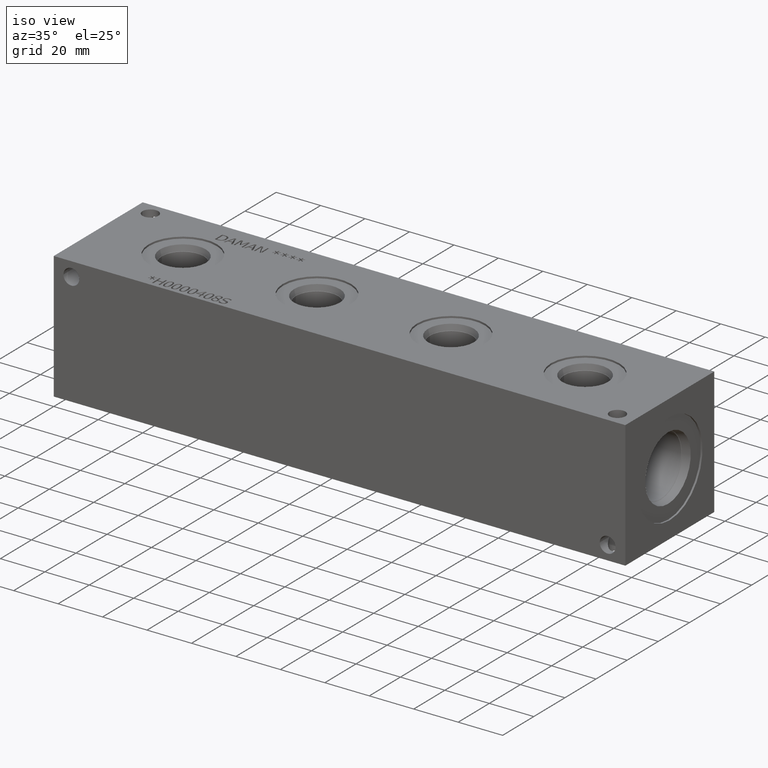
[diagram: clean part render]
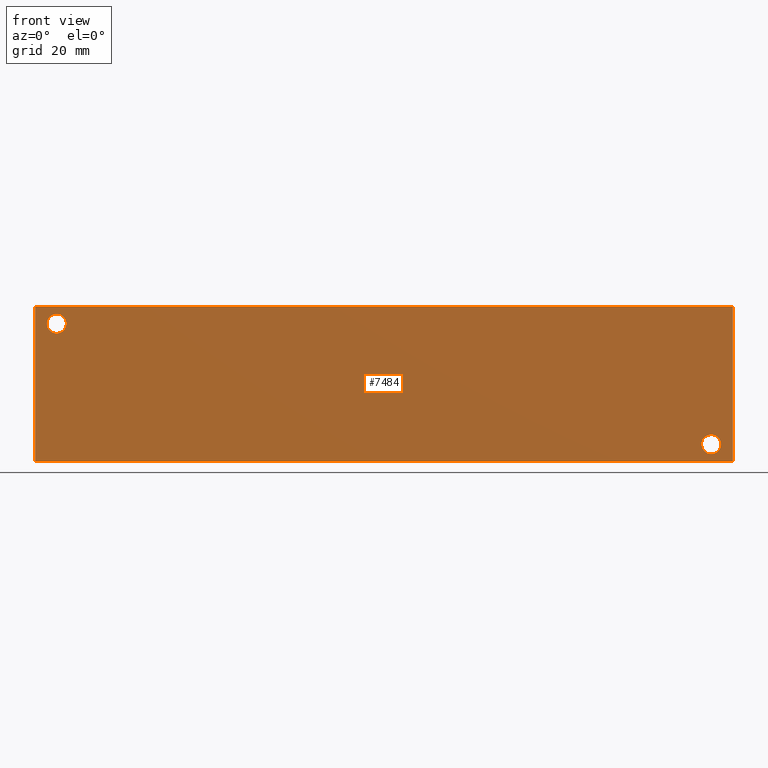
[diagram: tour spotlight — one face highlighted and labeled with its STEP entity id]
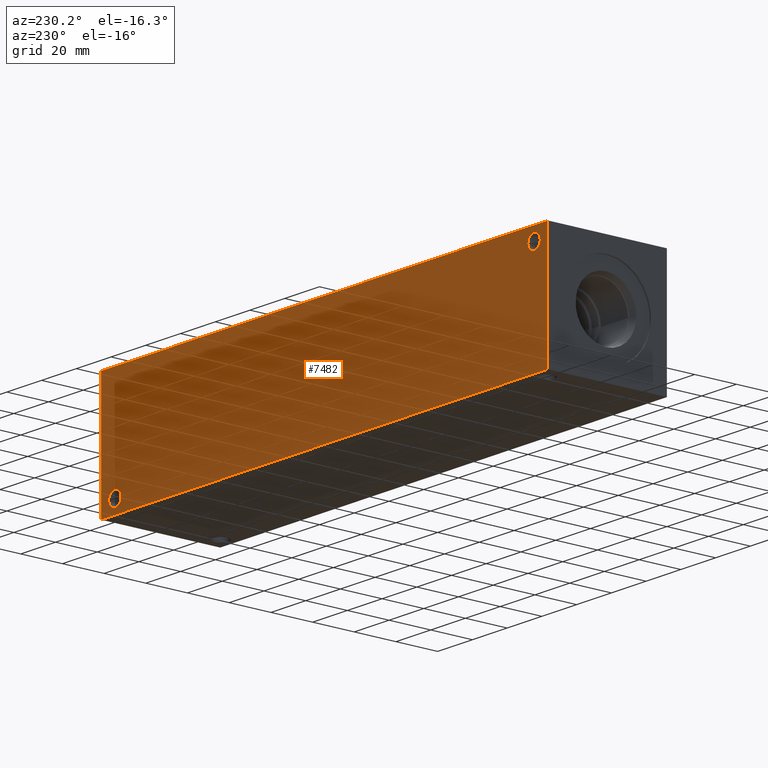
[diagram: tour spotlight — one face highlighted and labeled with its STEP entity id]
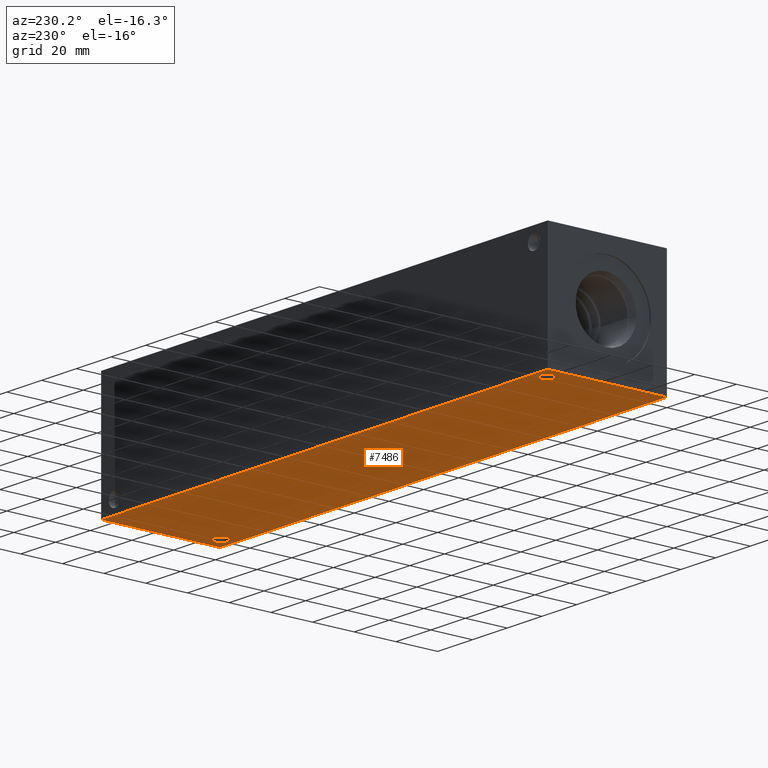
[diagram: tour spotlight — one face highlighted and labeled with its STEP entity id]
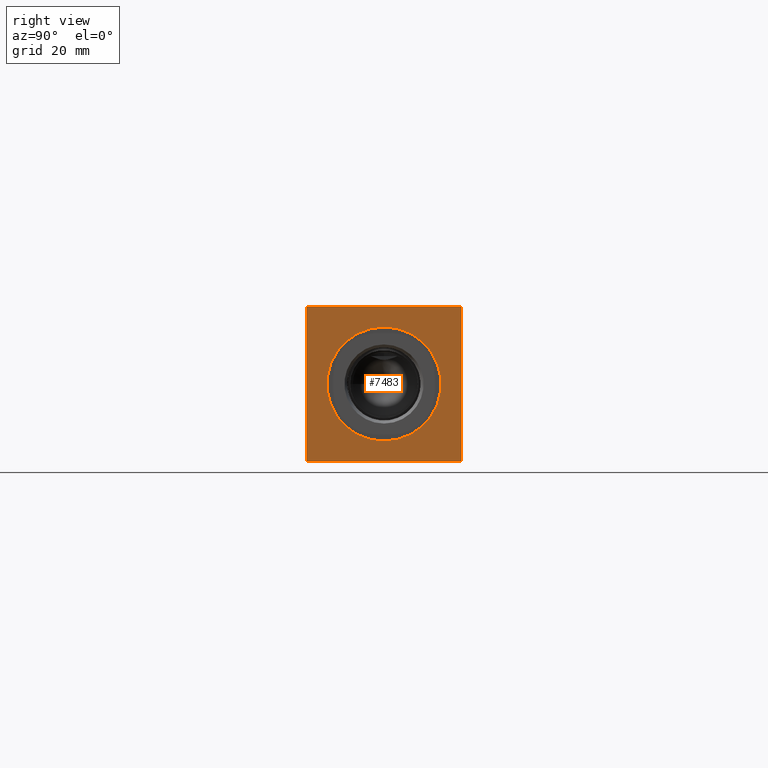
[diagram: tour spotlight — one face highlighted and labeled with its STEP entity id]
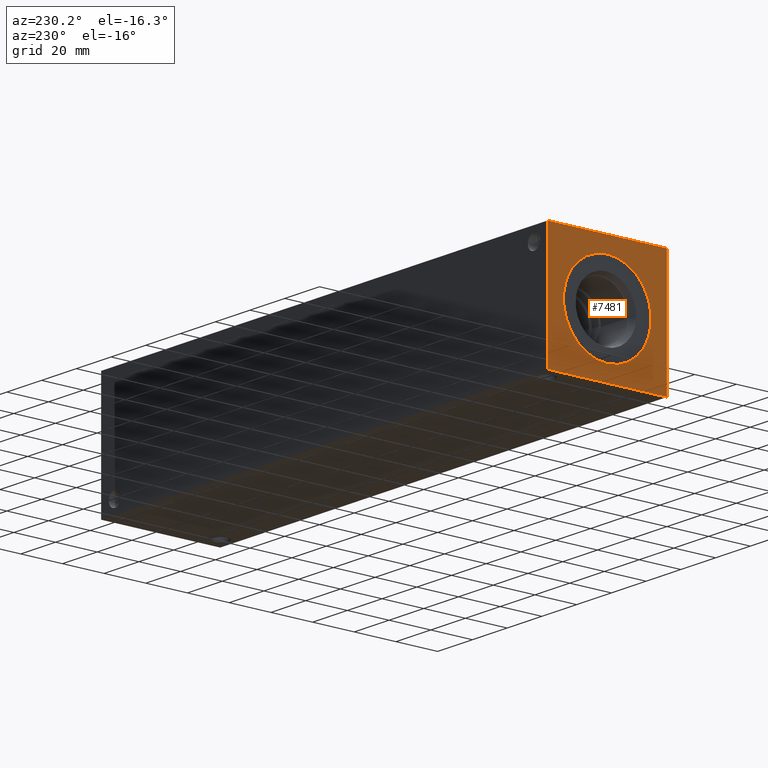
[diagram: tour spotlight — one face highlighted and labeled with its STEP entity id]
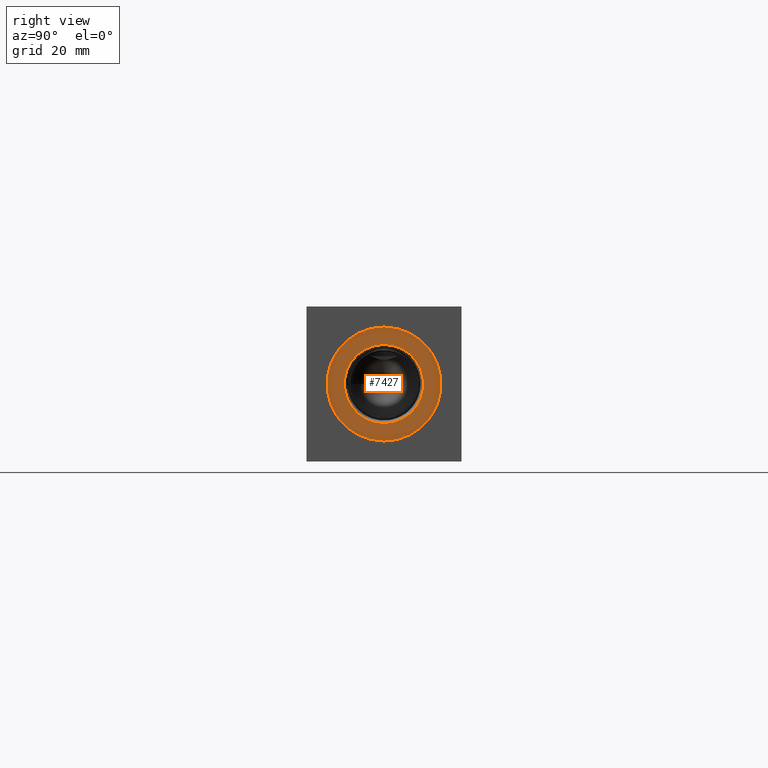
[diagram: tour spotlight — one face highlighted and labeled with its STEP entity id]
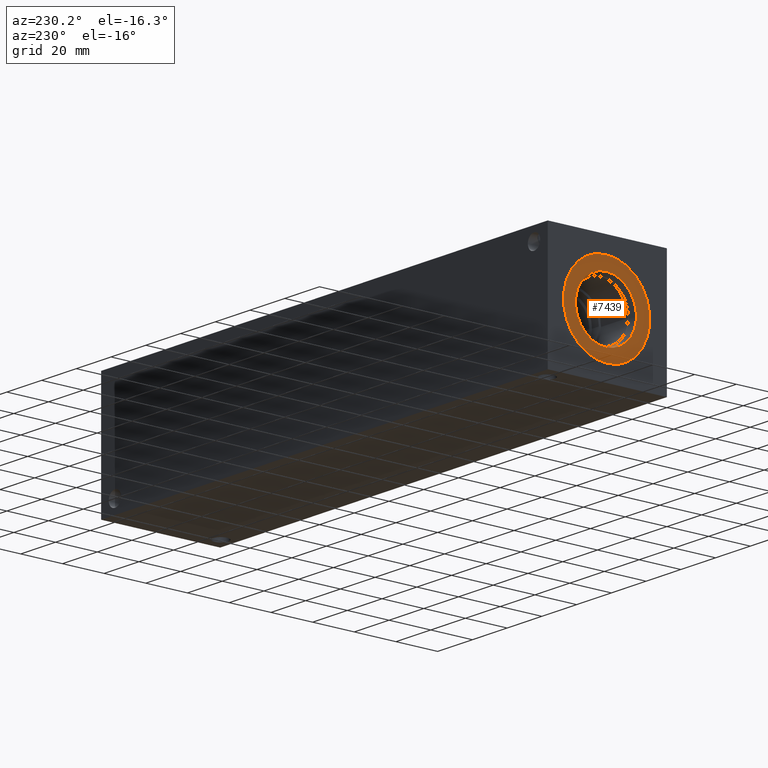
[diagram: tour spotlight — one face highlighted and labeled with its STEP entity id]
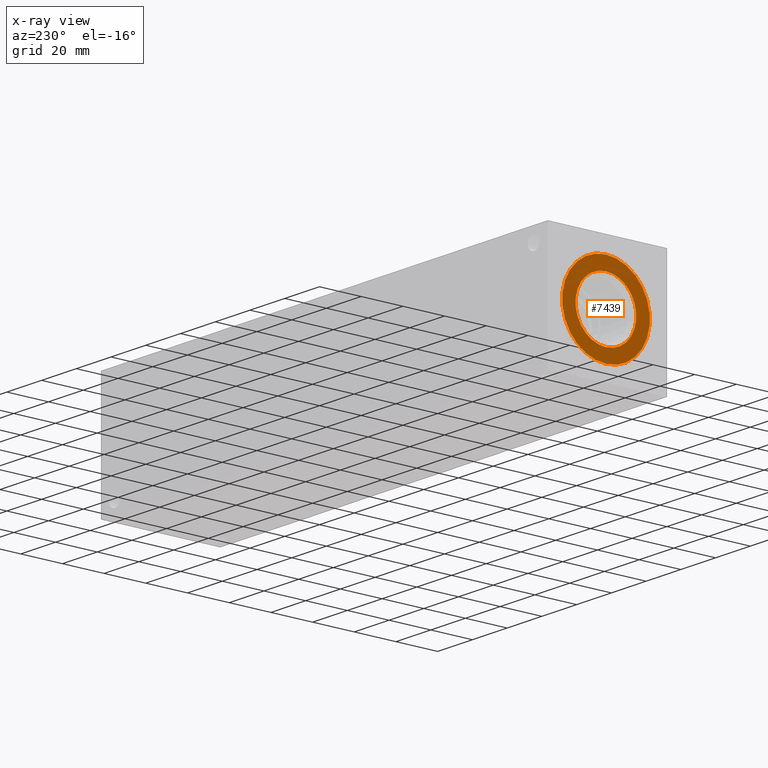
[diagram: x-ray of the same camera — body ghosted, this tour face saturated]
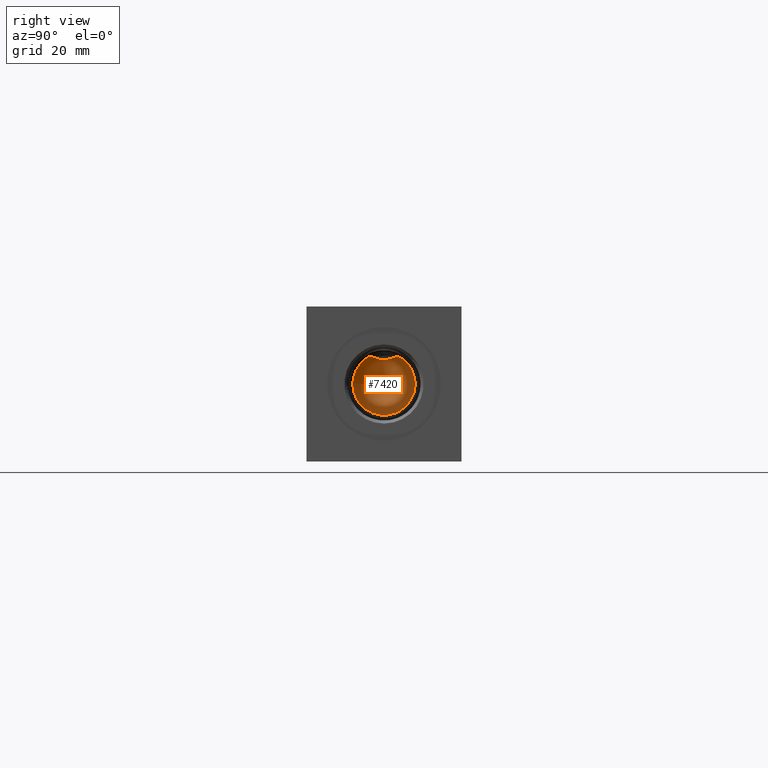
[diagram: tour spotlight — one face highlighted and labeled with its STEP entity id]
A machine part: a face-by-face anatomy tour. The part has 382 B-rep faces; the first image is the clean iso view, then the 8 largest visible faces are spotlighted one at a time (largest first), each with its STEP entity span.

Face 1 — front view, entity #7484. In plain terms, the highlighted planar face has unit normal (0, -1, 0).
Definition (entity closure, byte-faithful):
#92=CIRCLE('',#7717,3.5687);
#93=CIRCLE('',#7718,3.5687);
#95=CIRCLE('',#7727,3.5687);
#96=CIRCLE('',#7728,3.5687);
#253=FACE_BOUND('',#1292,.T.);
#254=FACE_BOUND('',#1293,.T.);
#475=PLANE('',#7906);
#857=FACE_OUTER_BOUND('',#1291,.T.);
#1291=EDGE_LOOP('',(#6689,#6690,#6691,#6692));
#1292=EDGE_LOOP('',(#6693,#6694));
#1293=EDGE_LOOP('',(#6695,#6696));
#1543=LINE('',#11538,#2235);
#1983=LINE('',#12919,#2675);
#1988=LINE('',#12928,#2680);
#1989=LINE('',#12930,#2681);
#2235=VECTOR('',#8278,10.);
#2675=VECTOR('',#9402,10.);
#2680=VECTOR('',#9411,10.);
#2681=VECTOR('',#9414,10.);
#3188=VERTEX_POINT('',#11536);
#3189=VERTEX_POINT('',#11537);
#3466=VERTEX_POINT('',#12478);
#3467=VERTEX_POINT('',#12479);
#3471=VERTEX_POINT('',#12496);
#3472=VERTEX_POINT('',#12497);
#3592=VERTEX_POINT('',#12917);
#3594=VERTEX_POINT('',#12926);
#4030=EDGE_CURVE('',#3188,#3189,#1543,.T.);
#4439=EDGE_CURVE('',#3466,#3467,#92,.T.);
#4440=EDGE_CURVE('',#3467,#3466,#93,.T.);
#4449=EDGE_CURVE('',#3471,#3472,#95,.T.);
#4450=EDGE_CURVE('',#3472,#3471,#96,.T.);
#4625=EDGE_CURVE('',#3592,#3188,#1983,.T.);
#4630=EDGE_CURVE('',#3594,#3189,#1988,.T.);
#4631=EDGE_CURVE('',#3592,#3594,#1989,.T.);
#6689=ORIENTED_EDGE('',*,*,#4631,.T.);
#6690=ORIENTED_EDGE('',*,*,#4630,.T.);
#6691=ORIENTED_EDGE('',*,*,#4030,.F.);
#6692=ORIENTED_EDGE('',*,*,#4625,.F.);
#6693=ORIENTED_EDGE('',*,*,#4439,.T.);
#6694=ORIENTED_EDGE('',*,*,#4440,.T.);
#6695=ORIENTED_EDGE('',*,*,#4449,.T.);
#6696=ORIENTED_EDGE('',*,*,#4450,.T.);
#7484=ADVANCED_FACE('',(#857,#253,#254),#475,.T.);
#7717=AXIS2_PLACEMENT_3D('',#12480,#8969,#8970);
#7718=AXIS2_PLACEMENT_3D('',#12481,#8971,#8972);
#7727=AXIS2_PLACEMENT_3D('',#12498,#8992,#8993);
#7728=AXIS2_PLACEMENT_3D('',#12499,#8994,#8995);
#7906=AXIS2_PLACEMENT_3D('',#12929,#9412,#9413);
#8278=DIRECTION('',(1.,0.,0.));
#8969=DIRECTION('center_axis',(0.,1.,0.));
#8970=DIRECTION('ref_axis',(1.,0.,0.));
#8971=DIRECTION('center_axis',(0.,1.,0.));
#8972=DIRECTION('ref_axis',(1.,0.,0.));
#8992=DIRECTION('center_axis',(0.,1.,0.));
#8993=DIRECTION('ref_axis',(1.,0.,0.));
#8994=DIRECTION('center_axis',(0.,1.,0.));
#8995=DIRECTION('ref_axis',(1.,0.,0.));
#9402=DIRECTION('',(0.,0.,1.));
#9411=DIRECTION('',(0.,0.,1.));
#9412=DIRECTION('center_axis',(0.,-1.,0.));
#9413=DIRECTION('ref_axis',(1.,0.,0.));
#9414=DIRECTION('',(1.,0.,0.));
#11536=CARTESIAN_POINT('',(0.,0.,57.15));
#11537=CARTESIAN_POINT('',(257.175,0.,57.15));
#11538=CARTESIAN_POINT('',(0.,0.,57.15));
#12478=CARTESIAN_POINT('',(252.7935,0.,6.35));
#12479=CARTESIAN_POINT('',(245.6561,0.,6.35));
#12480=CARTESIAN_POINT('Origin',(249.2248,0.,6.35));
#12481=CARTESIAN_POINT('Origin',(249.2248,0.,6.35));
#12496=CARTESIAN_POINT('',(11.4935,0.,50.8));
#12497=CARTESIAN_POINT('',(4.3561,0.,50.8));
#12498=CARTESIAN_POINT('Origin',(7.9248,0.,50.8));
#12499=CARTESIAN_POINT('Origin',(7.9248,0.,50.8));
#12917=CARTESIAN_POINT('',(0.,0.,0.));
#12919=CARTESIAN_POINT('',(0.,0.,0.));
#12926=CARTESIAN_POINT('',(257.175,0.,0.));
#12928=CARTESIAN_POINT('',(257.175,0.,0.));
#12929=CARTESIAN_POINT('Origin',(0.,0.,0.));
#12930=CARTESIAN_POINT('',(0.,0.,0.));

Face 2 — auxiliary view, entity #7482. In plain terms, the highlighted planar face has unit normal (0, 1, 0).
Definition (entity closure, byte-faithful):
#94=CIRCLE('',#7724,3.5687);
#97=CIRCLE('',#7734,3.5687);
#250=FACE_BOUND('',#1287,.T.);
#251=FACE_BOUND('',#1288,.T.);
#473=PLANE('',#7904);
#855=FACE_OUTER_BOUND('',#1286,.T.);
#1286=EDGE_LOOP('',(#6677,#6678,#6679,#6680));
#1287=EDGE_LOOP('',(#6681));
#1288=EDGE_LOOP('',(#6682));
#1545=LINE('',#11542,#2237);
#1984=LINE('',#12920,#2676);
#1985=LINE('',#12923,#2677);
#1986=LINE('',#12924,#2678);
#2237=VECTOR('',#8280,10.);
#2676=VECTOR('',#9403,10.);
#2677=VECTOR('',#9406,10.);
#2678=VECTOR('',#9407,10.);
#3190=VERTEX_POINT('',#11539);
#3191=VERTEX_POINT('',#11541);
#3470=VERTEX_POINT('',#12490);
#3475=VERTEX_POINT('',#12508);
#3591=VERTEX_POINT('',#12916);
#3593=VERTEX_POINT('',#12922);
#4032=EDGE_CURVE('',#3190,#3191,#1545,.T.);
#4447=EDGE_CURVE('',#3470,#3470,#94,.T.);
#4457=EDGE_CURVE('',#3475,#3475,#97,.T.);
#4626=EDGE_CURVE('',#3591,#3191,#1984,.T.);
#4627=EDGE_CURVE('',#3593,#3591,#1985,.T.);
#4628=EDGE_CURVE('',#3593,#3190,#1986,.T.);
#6677=ORIENTED_EDGE('',*,*,#4627,.T.);
#6678=ORIENTED_EDGE('',*,*,#4626,.T.);
#6679=ORIENTED_EDGE('',*,*,#4032,.F.);
#6680=ORIENTED_EDGE('',*,*,#4628,.F.);
#6681=ORIENTED_EDGE('',*,*,#4447,.T.);
#6682=ORIENTED_EDGE('',*,*,#4457,.T.);
#7482=ADVANCED_FACE('',(#855,#250,#251),#473,.T.);
#7724=AXIS2_PLACEMENT_3D('',#12492,#8985,#8986);
#7734=AXIS2_PLACEMENT_3D('',#12510,#9008,#9009);
#7904=AXIS2_PLACEMENT_3D('',#12921,#9404,#9405);
#8280=DIRECTION('',(-1.,0.,0.));
#8985=DIRECTION('center_axis',(0.,-1.,0.));
#8986=DIRECTION('ref_axis',(1.,0.,0.));
#9008=DIRECTION('center_axis',(0.,-1.,0.));
#9009=DIRECTION('ref_axis',(1.,0.,0.));
#9403=DIRECTION('',(0.,0.,1.));
#9404=DIRECTION('center_axis',(0.,1.,0.));
#9405=DIRECTION('ref_axis',(-1.,0.,0.));
#9406=DIRECTION('',(-1.,0.,0.));
#9407=DIRECTION('',(0.,0.,1.));
#11539=CARTESIAN_POINT('',(257.175,57.15,57.15));
#11541=CARTESIAN_POINT('',(0.,57.15,57.15));
#11542=CARTESIAN_POINT('',(257.175,57.15,57.15));
#12490=CARTESIAN_POINT('',(245.6561,57.15,6.35));
#12492=CARTESIAN_POINT('Origin',(249.2248,57.15,6.35));
#12508=CARTESIAN_POINT('',(4.3561,57.15,50.8));
#12510=CARTESIAN_POINT('Origin',(7.9248,57.15,50.8));
#12916=CARTESIAN_POINT('',(0.,57.15,0.));
#12920=CARTESIAN_POINT('',(0.,57.15,0.));
#12921=CARTESIAN_POINT('Origin',(257.175,57.15,0.));
#12922=CARTESIAN_POINT('',(257.175,57.15,0.));
#12923=CARTESIAN_POINT('',(257.175,57.15,0.));
#12924=CARTESIAN_POINT('',(257.175,57.15,0.));

Face 3 — auxiliary view, entity #7486. In plain terms, the highlighted planar face has unit normal (0, 0, 1).
Definition (entity closure, byte-faithful):
#98=CIRCLE('',#7737,3.5687);
#99=CIRCLE('',#7739,3.5687);
#255=FACE_BOUND('',#1296,.T.);
#256=FACE_BOUND('',#1297,.T.);
#477=PLANE('',#7908);
#859=FACE_OUTER_BOUND('',#1295,.T.);
#1295=EDGE_LOOP('',(#6700,#6701,#6702,#6703));
#1296=EDGE_LOOP('',(#6704));
#1297=EDGE_LOOP('',(#6705));
#1982=LINE('',#12918,#2674);
#1985=LINE('',#12923,#2677);
#1987=LINE('',#12927,#2679);
#1989=LINE('',#12930,#2681);
#2674=VECTOR('',#9401,10.);
#2677=VECTOR('',#9406,10.);
#2679=VECTOR('',#9410,10.);
#2681=VECTOR('',#9414,10.);
#3476=VERTEX_POINT('',#12514);
#3477=VERTEX_POINT('',#12518);
#3591=VERTEX_POINT('',#12916);
#3592=VERTEX_POINT('',#12917);
#3593=VERTEX_POINT('',#12922);
#3594=VERTEX_POINT('',#12926);
#4460=EDGE_CURVE('',#3476,#3476,#98,.T.);
#4462=EDGE_CURVE('',#3477,#3477,#99,.T.);
#4624=EDGE_CURVE('',#3591,#3592,#1982,.T.);
#4627=EDGE_CURVE('',#3593,#3591,#1985,.T.);
#4629=EDGE_CURVE('',#3594,#3593,#1987,.T.);
#4631=EDGE_CURVE('',#3592,#3594,#1989,.T.);
#6700=ORIENTED_EDGE('',*,*,#4631,.F.);
#6701=ORIENTED_EDGE('',*,*,#4624,.F.);
#6702=ORIENTED_EDGE('',*,*,#4627,.F.);
#6703=ORIENTED_EDGE('',*,*,#4629,.F.);
#6704=ORIENTED_EDGE('',*,*,#4460,.T.);
#6705=ORIENTED_EDGE('',*,*,#4462,.T.);
#7486=ADVANCED_FACE('',(#859,#255,#256),#477,.F.);
#7737=AXIS2_PLACEMENT_3D('',#12516,#9016,#9017);
#7739=AXIS2_PLACEMENT_3D('',#12520,#9021,#9022);
#7908=AXIS2_PLACEMENT_3D('',#12932,#9417,#9418);
#9016=DIRECTION('center_axis',(0.,0.,1.));
#9017=DIRECTION('ref_axis',(1.,0.,0.));
#9021=DIRECTION('center_axis',(0.,0.,1.));
#9022=DIRECTION('ref_axis',(1.,0.,0.));
#9401=DIRECTION('',(0.,-1.,0.));
#9406=DIRECTION('',(-1.,0.,0.));
#9410=DIRECTION('',(0.,1.,0.));
#9414=DIRECTION('',(1.,0.,0.));
#9417=DIRECTION('center_axis',(0.,0.,1.));
#9418=DIRECTION('ref_axis',(1.,0.,0.));
#12514=CARTESIAN_POINT('',(245.6561,6.35,0.));
#12516=CARTESIAN_POINT('Origin',(249.2248,6.35,0.));
#12518=CARTESIAN_POINT('',(4.3561,50.8,0.));
#12520=CARTESIAN_POINT('Origin',(7.9248,50.8,0.));
#12916=CARTESIAN_POINT('',(0.,57.15,0.));
#12917=CARTESIAN_POINT('',(0.,0.,0.));
#12918=CARTESIAN_POINT('',(0.,57.15,0.));
#12922=CARTESIAN_POINT('',(257.175,57.15,0.));
#12923=CARTESIAN_POINT('',(257.175,57.15,0.));
#12926=CARTESIAN_POINT('',(257.175,0.,0.));
#12927=CARTESIAN_POINT('',(257.175,0.,0.));
#12930=CARTESIAN_POINT('',(0.,0.,0.));
#12932=CARTESIAN_POINT('Origin',(128.5875,28.575,0.));

Face 4 — right view, entity #7483. In plain terms, the highlighted planar face has unit normal (1, 0, 0).
Definition (entity closure, byte-faithful):
#113=CIRCLE('',#7761,21.0185);
#114=CIRCLE('',#7762,21.0185);
#252=FACE_BOUND('',#1290,.T.);
#474=PLANE('',#7905);
#856=FACE_OUTER_BOUND('',#1289,.T.);
#1289=EDGE_LOOP('',(#6683,#6684,#6685,#6686));
#1290=EDGE_LOOP('',(#6687,#6688));
#1544=LINE('',#11540,#2236);
#1986=LINE('',#12924,#2678);
#1987=LINE('',#12927,#2679);
#1988=LINE('',#12928,#2680);
#2236=VECTOR('',#8279,10.);
#2678=VECTOR('',#9407,10.);
#2679=VECTOR('',#9410,10.);
#2680=VECTOR('',#9411,10.);
#3189=VERTEX_POINT('',#11537);
#3190=VERTEX_POINT('',#11539);
#3494=VERTEX_POINT('',#12596);
#3495=VERTEX_POINT('',#12597);
#3593=VERTEX_POINT('',#12922);
#3594=VERTEX_POINT('',#12926);
#4031=EDGE_CURVE('',#3189,#3190,#1544,.T.);
#4486=EDGE_CURVE('',#3494,#3495,#113,.T.);
#4487=EDGE_CURVE('',#3495,#3494,#114,.T.);
#4628=EDGE_CURVE('',#3593,#3190,#1986,.T.);
#4629=EDGE_CURVE('',#3594,#3593,#1987,.T.);
#4630=EDGE_CURVE('',#3594,#3189,#1988,.T.);
#6683=ORIENTED_EDGE('',*,*,#4629,.T.);
#6684=ORIENTED_EDGE('',*,*,#4628,.T.);
#6685=ORIENTED_EDGE('',*,*,#4031,.F.);
#6686=ORIENTED_EDGE('',*,*,#4630,.F.);
#6687=ORIENTED_EDGE('',*,*,#4486,.T.);
#6688=ORIENTED_EDGE('',*,*,#4487,.T.);
#7483=ADVANCED_FACE('',(#856,#252),#474,.T.);
#7761=AXIS2_PLACEMENT_3D('',#12598,#9071,#9072);
#7762=AXIS2_PLACEMENT_3D('',#12599,#9073,#9074);
#7905=AXIS2_PLACEMENT_3D('',#12925,#9408,#9409);
#8279=DIRECTION('',(0.,1.,0.));
#9071=DIRECTION('center_axis',(-1.,0.,0.));
#9072=DIRECTION('ref_axis',(0.,0.,-1.));
#9073=DIRECTION('center_axis',(-1.,0.,0.));
#9074=DIRECTION('ref_axis',(0.,0.,-1.));
#9407=DIRECTION('',(0.,0.,1.));
#9408=DIRECTION('center_axis',(1.,0.,0.));
#9409=DIRECTION('ref_axis',(0.,1.,0.));
#9410=DIRECTION('',(0.,1.,0.));
#9411=DIRECTION('',(0.,0.,1.));
#11537=CARTESIAN_POINT('',(257.175,0.,57.15));
#11539=CARTESIAN_POINT('',(257.175,57.15,57.15));
#11540=CARTESIAN_POINT('',(257.175,0.,57.15));
#12596=CARTESIAN_POINT('',(257.175,28.575,7.5565));
#12597=CARTESIAN_POINT('',(257.175,28.575,49.5935));
#12598=CARTESIAN_POINT('Origin',(257.175,28.575,28.575));
#12599=CARTESIAN_POINT('Origin',(257.175,28.575,28.575));
#12922=CARTESIAN_POINT('',(257.175,57.15,0.));
#12924=CARTESIAN_POINT('',(257.175,57.15,0.));
#12925=CARTESIAN_POINT('Origin',(257.175,0.,0.));
#12926=CARTESIAN_POINT('',(257.175,0.,0.));
#12927=CARTESIAN_POINT('',(257.175,0.,0.));
#12928=CARTESIAN_POINT('',(257.175,0.,0.));

Face 5 — auxiliary view, entity #7481. In plain terms, the highlighted planar face has unit normal (-1, 0, 0).
Definition (entity closure, byte-faithful):
#135=CIRCLE('',#7795,21.0185);
#136=CIRCLE('',#7796,21.0185);
#249=FACE_BOUND('',#1285,.T.);
#472=PLANE('',#7903);
#854=FACE_OUTER_BOUND('',#1284,.T.);
#1284=EDGE_LOOP('',(#6671,#6672,#6673,#6674));
#1285=EDGE_LOOP('',(#6675,#6676));
#1546=LINE('',#11543,#2238);
#1982=LINE('',#12918,#2674);
#1983=LINE('',#12919,#2675);
#1984=LINE('',#12920,#2676);
#2238=VECTOR('',#8281,10.);
#2674=VECTOR('',#9401,10.);
#2675=VECTOR('',#9402,10.);
#2676=VECTOR('',#9403,10.);
#3188=VERTEX_POINT('',#11536);
#3191=VERTEX_POINT('',#11541);
#3521=VERTEX_POINT('',#12703);
#3522=VERTEX_POINT('',#12704);
#3591=VERTEX_POINT('',#12916);
#3592=VERTEX_POINT('',#12917);
#4033=EDGE_CURVE('',#3191,#3188,#1546,.T.);
#4524=EDGE_CURVE('',#3521,#3522,#135,.T.);
#4525=EDGE_CURVE('',#3522,#3521,#136,.T.);
#4624=EDGE_CURVE('',#3591,#3592,#1982,.T.);
#4625=EDGE_CURVE('',#3592,#3188,#1983,.T.);
#4626=EDGE_CURVE('',#3591,#3191,#1984,.T.);
#6671=ORIENTED_EDGE('',*,*,#4624,.T.);
#6672=ORIENTED_EDGE('',*,*,#4625,.T.);
#6673=ORIENTED_EDGE('',*,*,#4033,.F.);
#6674=ORIENTED_EDGE('',*,*,#4626,.F.);
#6675=ORIENTED_EDGE('',*,*,#4524,.T.);
#6676=ORIENTED_EDGE('',*,*,#4525,.T.);
#7481=ADVANCED_FACE('',(#854,#249),#472,.T.);
#7795=AXIS2_PLACEMENT_3D('',#12705,#9149,#9150);
#7796=AXIS2_PLACEMENT_3D('',#12706,#9151,#9152);
#7903=AXIS2_PLACEMENT_3D('',#12915,#9399,#9400);
#8281=DIRECTION('',(0.,-1.,0.));
#9149=DIRECTION('center_axis',(1.,0.,0.));
#9150=DIRECTION('ref_axis',(0.,0.,1.));
#9151=DIRECTION('center_axis',(1.,0.,0.));
#9152=DIRECTION('ref_axis',(0.,0.,1.));
#9399=DIRECTION('center_axis',(-1.,0.,0.));
#9400=DIRECTION('ref_axis',(0.,-1.,0.));
#9401=DIRECTION('',(0.,-1.,0.));
#9402=DIRECTION('',(0.,0.,1.));
#9403=DIRECTION('',(0.,0.,1.));
#11536=CARTESIAN_POINT('',(0.,0.,57.15));
#11541=CARTESIAN_POINT('',(0.,57.15,57.15));
#11543=CARTESIAN_POINT('',(0.,57.15,57.15));
#12703=CARTESIAN_POINT('',(0.,28.575,49.5935));
#12704=CARTESIAN_POINT('',(0.,28.575,7.55649999999999));
#12705=CARTESIAN_POINT('Origin',(0.,28.575,28.575));
#12706=CARTESIAN_POINT('Origin',(0.,28.575,28.575));
#12915=CARTESIAN_POINT('Origin',(0.,57.15,0.));
#12916=CARTESIAN_POINT('',(0.,57.15,0.));
#12917=CARTESIAN_POINT('',(0.,0.,0.));
#12918=CARTESIAN_POINT('',(0.,57.15,0.));
#12919=CARTESIAN_POINT('',(0.,0.,0.));
#12920=CARTESIAN_POINT('',(0.,57.15,0.));

Face 6 — right view, entity #7427. In plain terms, the highlighted planar face has unit normal (-1, 0, 0).
Definition (entity closure, byte-faithful):
#115=CIRCLE('',#7763,21.0185);
#116=CIRCLE('',#7764,21.0185);
#117=CIRCLE('',#7766,14.5923);
#118=CIRCLE('',#7767,14.5923);
#238=FACE_BOUND('',#1220,.T.);
#461=PLANE('',#7765);
#800=FACE_OUTER_BOUND('',#1219,.T.);
#1219=EDGE_LOOP('',(#6391,#6392));
#1220=EDGE_LOOP('',(#6393,#6394));
#3496=VERTEX_POINT('',#12600);
#3497=VERTEX_POINT('',#12602);
#3498=VERTEX_POINT('',#12606);
#3499=VERTEX_POINT('',#12607);
#4489=EDGE_CURVE('',#3496,#3497,#115,.T.);
#4490=EDGE_CURVE('',#3497,#3496,#116,.T.);
#4491=EDGE_CURVE('',#3498,#3499,#117,.T.);
#4492=EDGE_CURVE('',#3499,#3498,#118,.T.);
#6391=ORIENTED_EDGE('',*,*,#4490,.F.);
#6392=ORIENTED_EDGE('',*,*,#4489,.F.);
#6393=ORIENTED_EDGE('',*,*,#4491,.T.);
#6394=ORIENTED_EDGE('',*,*,#4492,.T.);
#7427=ADVANCED_FACE('',(#800,#238),#461,.F.);
#7763=AXIS2_PLACEMENT_3D('',#12603,#9076,#9077);
#7764=AXIS2_PLACEMENT_3D('',#12604,#9078,#9079);
#7765=AXIS2_PLACEMENT_3D('',#12605,#9080,#9081);
#7766=AXIS2_PLACEMENT_3D('',#12608,#9082,#9083);
#7767=AXIS2_PLACEMENT_3D('',#12609,#9084,#9085);
#9076=DIRECTION('center_axis',(-1.,0.,0.));
#9077=DIRECTION('ref_axis',(0.,0.,1.));
#9078=DIRECTION('center_axis',(-1.,0.,0.));
#9079=DIRECTION('ref_axis',(0.,0.,1.));
#9080=DIRECTION('center_axis',(-1.,0.,0.));
#9081=DIRECTION('ref_axis',(0.,0.,1.));
#9082=DIRECTION('center_axis',(-1.,0.,0.));
#9083=DIRECTION('ref_axis',(0.,0.,1.));
#9084=DIRECTION('center_axis',(-1.,0.,0.));
#9085=DIRECTION('ref_axis',(0.,0.,1.));
#12600=CARTESIAN_POINT('',(256.3876,28.575,49.5935));
#12602=CARTESIAN_POINT('',(256.3876,28.575,7.5565));
#12603=CARTESIAN_POINT('Origin',(256.3876,28.575,28.575));
#12604=CARTESIAN_POINT('Origin',(256.3876,28.575,28.575));
#12605=CARTESIAN_POINT('Origin',(256.3876,28.575,13.9827));
#12606=CARTESIAN_POINT('',(256.3876,28.575,13.9827));
#12607=CARTESIAN_POINT('',(256.3876,28.575,43.1673));
#12608=CARTESIAN_POINT('Origin',(256.3876,28.575,28.575));
#12609=CARTESIAN_POINT('Origin',(256.3876,28.575,28.575));

Face 7 — auxiliary view, entity #7439. An x-ray twin of the same camera follows (body ghosted, this face saturated) — the face is partly hidden behind the body. In plain terms, the highlighted planar face has unit normal (1, 0, 0).
Definition (entity closure, byte-faithful):
#137=CIRCLE('',#7797,21.0185);
#138=CIRCLE('',#7798,21.0185);
#139=CIRCLE('',#7800,14.5923);
#140=CIRCLE('',#7801,14.5923);
#240=FACE_BOUND('',#1234,.T.);
#463=PLANE('',#7799);
#812=FACE_OUTER_BOUND('',#1233,.T.);
#1233=EDGE_LOOP('',(#6461,#6462));
#1234=EDGE_LOOP('',(#6463,#6464));
#3523=VERTEX_POINT('',#12707);
#3524=VERTEX_POINT('',#12709);
#3525=VERTEX_POINT('',#12713);
#3526=VERTEX_POINT('',#12714);
#4527=EDGE_CURVE('',#3523,#3524,#137,.T.);
#4528=EDGE_CURVE('',#3524,#3523,#138,.T.);
#4529=EDGE_CURVE('',#3525,#3526,#139,.T.);
#4530=EDGE_CURVE('',#3526,#3525,#140,.T.);
#6461=ORIENTED_EDGE('',*,*,#4528,.F.);
#6462=ORIENTED_EDGE('',*,*,#4527,.F.);
#6463=ORIENTED_EDGE('',*,*,#4529,.T.);
#6464=ORIENTED_EDGE('',*,*,#4530,.T.);
#7439=ADVANCED_FACE('',(#812,#240),#463,.F.);
#7797=AXIS2_PLACEMENT_3D('',#12710,#9154,#9155);
#7798=AXIS2_PLACEMENT_3D('',#12711,#9156,#9157);
#7799=AXIS2_PLACEMENT_3D('',#12712,#9158,#9159);
#7800=AXIS2_PLACEMENT_3D('',#12715,#9160,#9161);
#7801=AXIS2_PLACEMENT_3D('',#12716,#9162,#9163);
#9154=DIRECTION('center_axis',(1.,0.,0.));
#9155=DIRECTION('ref_axis',(0.,0.,-1.));
#9156=DIRECTION('center_axis',(1.,0.,0.));
#9157=DIRECTION('ref_axis',(0.,0.,-1.));
#9158=DIRECTION('center_axis',(1.,0.,0.));
#9159=DIRECTION('ref_axis',(0.,0.,-1.));
#9160=DIRECTION('center_axis',(1.,0.,0.));
#9161=DIRECTION('ref_axis',(0.,0.,-1.));
#9162=DIRECTION('center_axis',(1.,0.,0.));
#9163=DIRECTION('ref_axis',(0.,0.,-1.));
#12707=CARTESIAN_POINT('',(0.7874,28.575,7.55649999999999));
#12709=CARTESIAN_POINT('',(0.7874,28.575,49.5935));
#12710=CARTESIAN_POINT('Origin',(0.7874,28.575,28.575));
#12711=CARTESIAN_POINT('Origin',(0.7874,28.575,28.575));
#12712=CARTESIAN_POINT('Origin',(0.7874,28.575,43.1673));
#12713=CARTESIAN_POINT('',(0.7874,28.575,43.1673));
#12714=CARTESIAN_POINT('',(0.787399999999999,28.575,13.9827));
#12715=CARTESIAN_POINT('Origin',(0.7874,28.575,28.575));
#12716=CARTESIAN_POINT('Origin',(0.7874,28.575,28.575));

Face 8 — right view, entity #7420. In plain terms, the highlighted conical surface has half-angle 60 deg.
Definition (entity closure, byte-faithful):
#14=CONICAL_SURFACE('',#7744,5.7531,1.0471975511966);
#101=CIRCLE('',#7742,11.5062);
#102=CIRCLE('',#7743,11.5062);
#793=FACE_OUTER_BOUND('',#1211,.T.);
#1211=EDGE_LOOP('',(#6351,#6352,#6353,#6354,#6355,#6356,#6357));
#1933=LINE('',#12566,#2625);
#2625=VECTOR('',#9034,5.7531);
#2889=B_SPLINE_CURVE_WITH_KNOTS('',3,(#12542,#12543,#12544,#12545),
 .UNSPECIFIED.,.F.,.F.,(4,4),(4.41305066854933,4.42547324670228),
 .UNSPECIFIED.);
#2890=B_SPLINE_CURVE_WITH_KNOTS('',3,(#12547,#12548,#12549,#12550,#12551,
#12552,#12553,#12554,#12555,#12556,#12557,#12558,#12559,#12560),
 .UNSPECIFIED.,.F.,.F.,(4,2,2,2,2,2,4),(2.13434858610542,2.39157306111542,
2.56239970833795,2.73322635556048,2.90405300278301,3.07487965000553,3.33210412501553),
 .UNSPECIFIED.);
#2891=B_SPLINE_CURVE_WITH_KNOTS('',3,(#12561,#12562,#12563,#12564),
 .UNSPECIFIED.,.F.,.F.,(4,4),(5.70883093887666,5.7212535170296),
 .UNSPECIFIED.);
#3479=VERTEX_POINT('',#12524);
#3480=VERTEX_POINT('',#12526);
#3481=VERTEX_POINT('',#12528);
#3482=VERTEX_POINT('',#12541);
#3483=VERTEX_POINT('',#12546);
#3484=VERTEX_POINT('',#12565);
#4465=EDGE_CURVE('',#3480,#3479,#101,.T.);
#4467=EDGE_CURVE('',#3479,#3481,#102,.T.);
#4468=EDGE_CURVE('',#3482,#3481,#2889,.T.);
#4469=EDGE_CURVE('',#3483,#3482,#2890,.T.);
#4470=EDGE_CURVE('',#3480,#3483,#2891,.T.);
#4471=EDGE_CURVE('',#3479,#3484,#1933,.T.);
#6351=ORIENTED_EDGE('',*,*,#4468,.F.);
#6352=ORIENTED_EDGE('',*,*,#4469,.F.);
#6353=ORIENTED_EDGE('',*,*,#4470,.F.);
#6354=ORIENTED_EDGE('',*,*,#4465,.T.);
#6355=ORIENTED_EDGE('',*,*,#4471,.T.);
#6356=ORIENTED_EDGE('',*,*,#4471,.F.);
#6357=ORIENTED_EDGE('',*,*,#4467,.T.);
#7420=ADVANCED_FACE('',(#793),#14,.F.);
#7742=AXIS2_PLACEMENT_3D('',#12527,#9028,#9029);
#7743=AXIS2_PLACEMENT_3D('',#12539,#9030,#9031);
#7744=AXIS2_PLACEMENT_3D('',#12540,#9032,#9033);
#9028=DIRECTION('center_axis',(1.,0.,0.));
#9029=DIRECTION('ref_axis',(0.,1.,0.));
#9030=DIRECTION('center_axis',(1.,0.,0.));
#9031=DIRECTION('ref_axis',(0.,1.,0.));
#9032=DIRECTION('center_axis',(1.,0.,0.));
#9033=DIRECTION('ref_axis',(0.,1.,0.));
#9034=DIRECTION('',(-0.5,0.866025403784439,1.06057523872491E-16));
#12524=CARTESIAN_POINT('',(226.30801,17.0688,28.575));
#12526=CARTESIAN_POINT('',(226.30801,23.6504374377109,38.9741019809453));
#12527=CARTESIAN_POINT('Origin',(226.30801,28.575,28.575));
#12528=CARTESIAN_POINT('',(226.30801,33.4995625622891,38.9741019809453));
#12539=CARTESIAN_POINT('Origin',(226.30801,28.575,28.575));
#12540=CARTESIAN_POINT('Origin',(222.986456166325,28.575,28.575));
#12541=CARTESIAN_POINT('',(226.265188054514,33.5618773627112,38.862));
#12542=CARTESIAN_POINT('Ctrl Pts',(226.265188054514,33.5618773627112,38.862));
#12543=CARTESIAN_POINT('Ctrl Pts',(226.279473860319,33.541279777734,38.8994831175748));
#12544=CARTESIAN_POINT('Ctrl Pts',(226.293749634023,33.5205076449046,38.9368540714531));
#12545=CARTESIAN_POINT('Ctrl Pts',(226.30801,33.4995625622891,38.9741019809453));
#12546=CARTESIAN_POINT('',(226.265188054514,23.5881226372888,38.862));
#12547=CARTESIAN_POINT('Ctrl Pts',(226.265188054514,23.5881226372889,38.862));
#12548=CARTESIAN_POINT('Ctrl Pts',(225.952727230436,24.2477234015149,38.5803198184239));
#12549=CARTESIAN_POINT('Ctrl Pts',(225.665188850511,24.906640901469,38.3163706308247));
#12550=CARTESIAN_POINT('Ctrl Pts',(225.259986515148,26.0438639626108,37.9376217658257));
#12551=CARTESIAN_POINT('Ctrl Pts',(225.118058378318,26.5073641476039,37.8028228388642));
#12552=CARTESIAN_POINT('Ctrl Pts',(224.905888437496,27.48821475903,37.5994004934281));
#12553=CARTESIAN_POINT('Ctrl Pts',(224.835591241296,28.0055778425916,37.5308958999067));
#12554=CARTESIAN_POINT('Ctrl Pts',(224.835591241296,29.1444221574084,37.5308958999067));
#12555=CARTESIAN_POINT('Ctrl Pts',(224.905888437496,29.66178524097,37.5994004934281));
#12556=CARTESIAN_POINT('Ctrl Pts',(225.118058378318,30.6426358523961,37.8028228388642));
#12557=CARTESIAN_POINT('Ctrl Pts',(225.259986515148,31.1061360373892,37.9376217658257));
#12558=CARTESIAN_POINT('Ctrl Pts',(225.665188850511,32.243359098531,38.3163706308247));
#12559=CARTESIAN_POINT('Ctrl Pts',(225.952727230436,32.9022765984852,38.5803198184239));
#12560=CARTESIAN_POINT('Ctrl Pts',(226.265188054514,33.5618773627112,38.862));
#12561=CARTESIAN_POINT('Ctrl Pts',(226.30801,23.6504374377109,38.9741019809453));
#12562=CARTESIAN_POINT('Ctrl Pts',(226.293749604155,23.629492311226,38.9368539934375));
#12563=CARTESIAN_POINT('Ctrl Pts',(226.279473898601,23.6087202774619,38.8994832180193));
#12564=CARTESIAN_POINT('Ctrl Pts',(226.265188054514,23.5881226372888,38.862));
#12565=CARTESIAN_POINT('',(219.66490233265,28.575,28.575));
#12566=CARTESIAN_POINT('',(222.986456166325,22.8219,28.575));